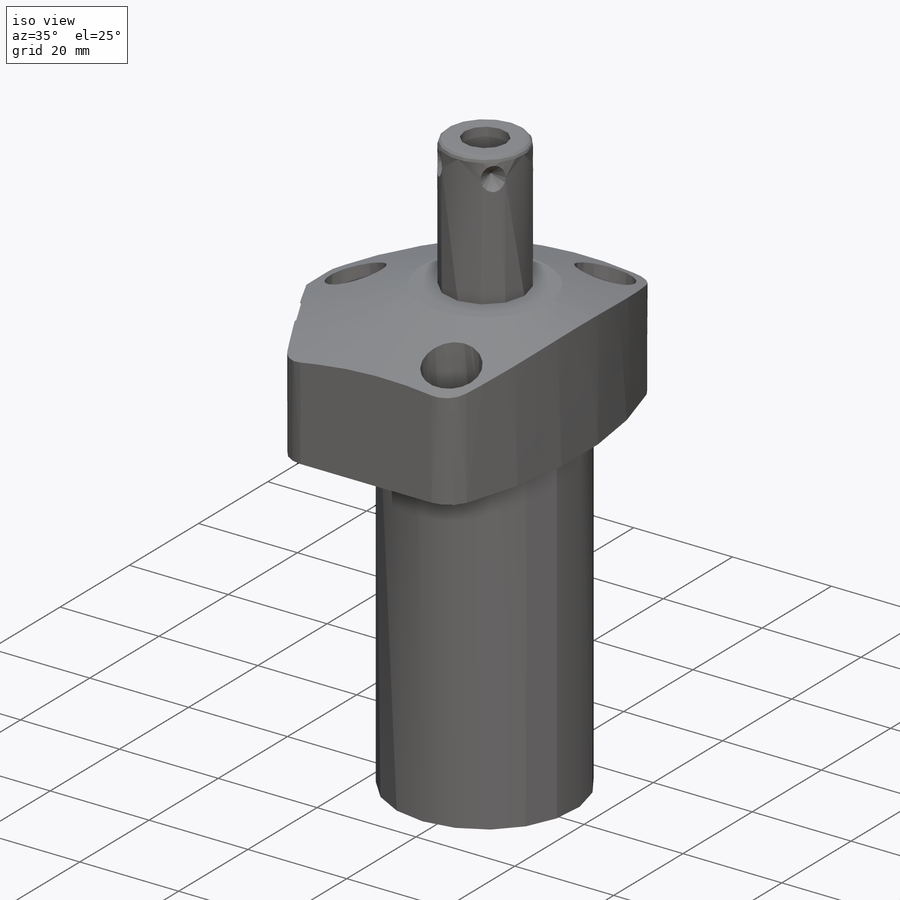
[diagram: iso view]
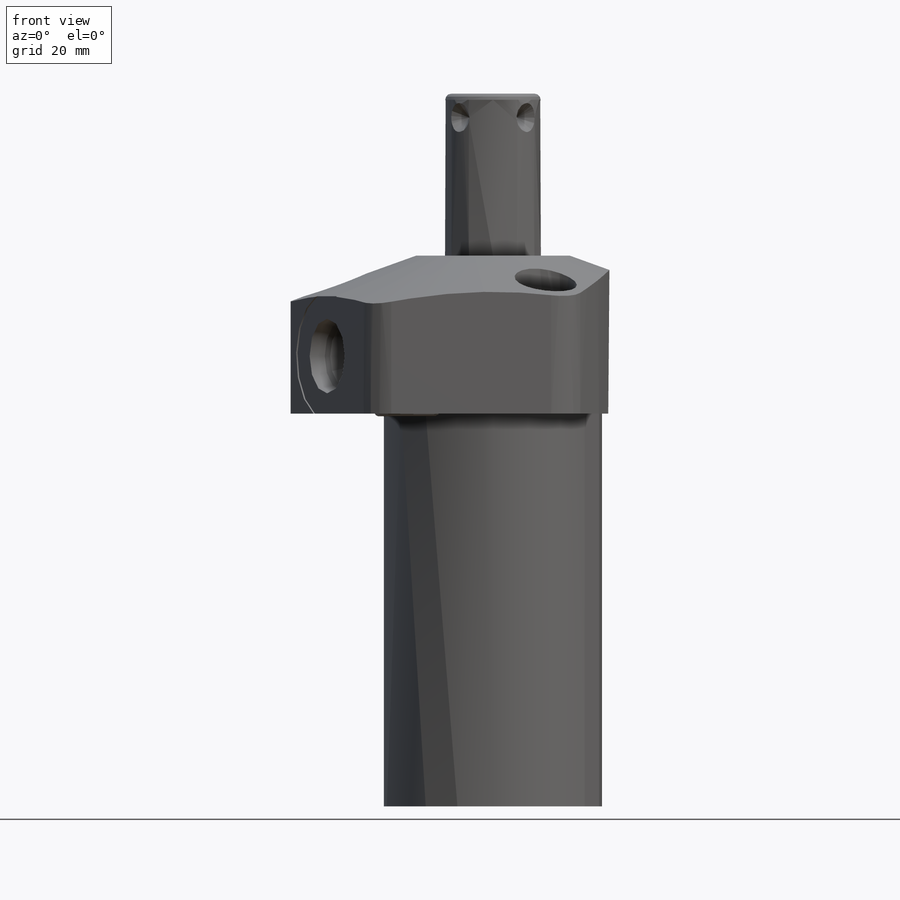
[diagram: front view]
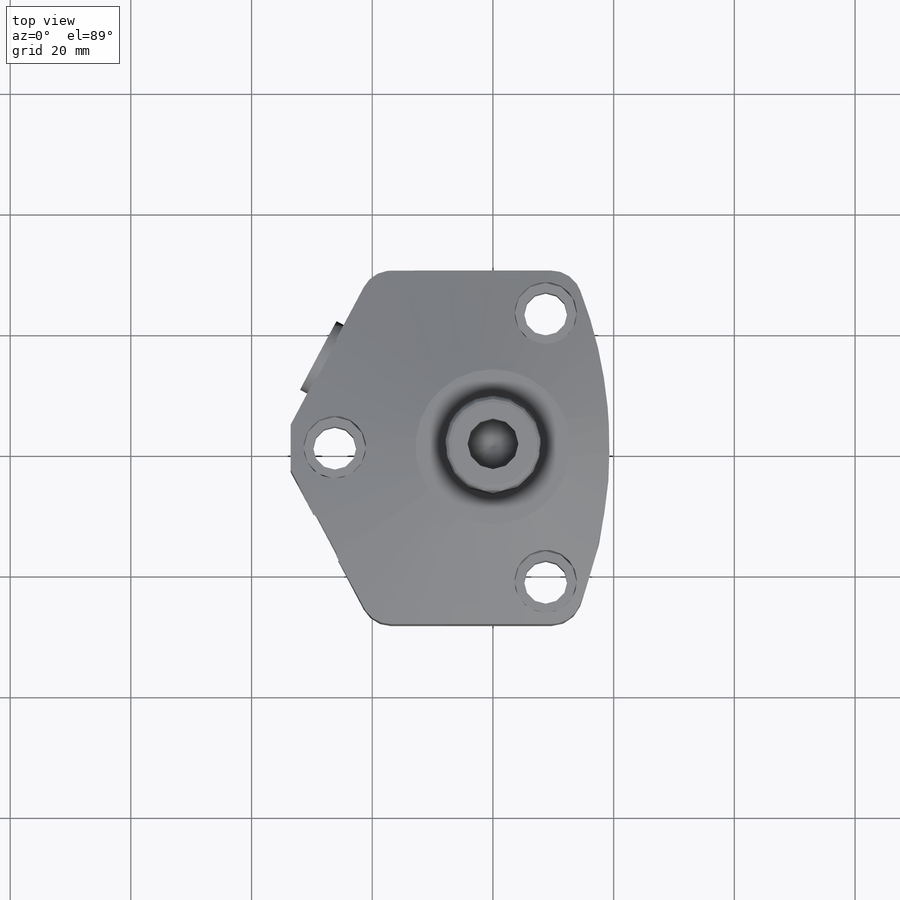
[diagram: top view]
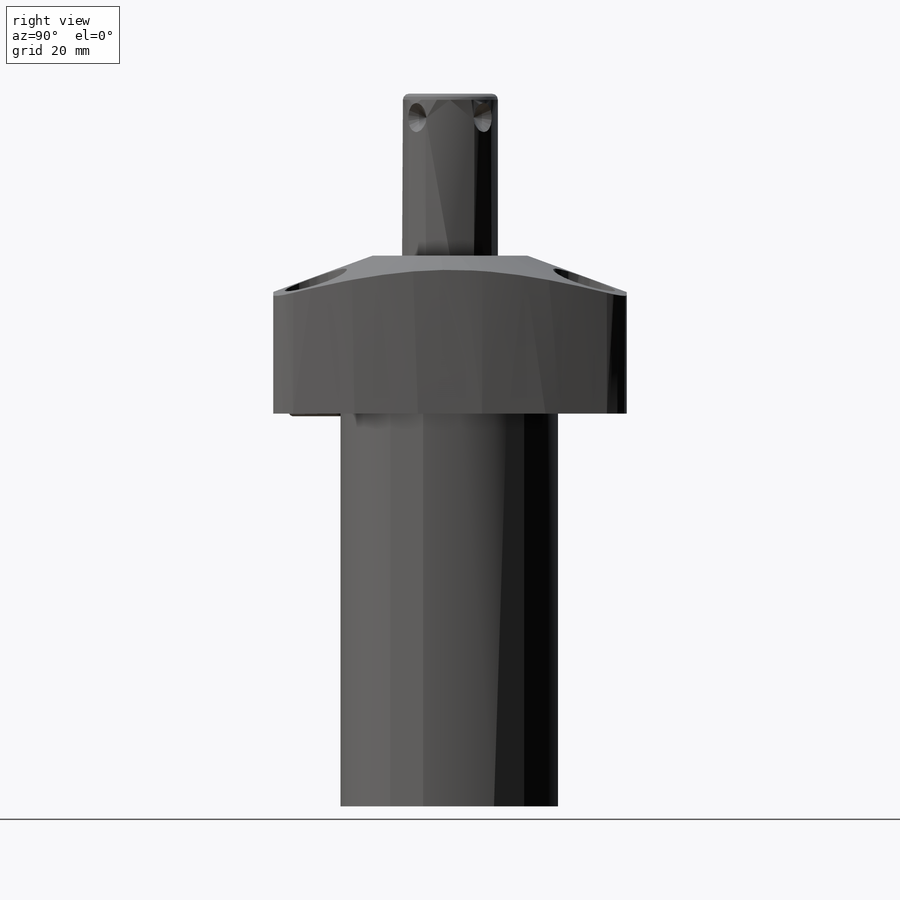
[diagram: right view]
SOLIDWORKS PART (.sldprt)
format: sldprt  version: not decoded by parser v0  size: 515,584 bytes
history: native  units: mm
features: sketch x19, plane x15, cut_revolve x7, cut_extrude x5, revolve x3, fillet x3, extrude x2, material x1, mirror x1, pattern_circular x1, hole x1 (+11 scaffold rows collapsed)
feature tree (69):
  scaffold x11  (default folders/planes/origin — collapsed)
  material  "Alloy Steel"
  plane  "Plane1"
  sketch  "Sketch1"  dims[D1=91.2622mm D2=69.85mm D3=26.1874mm D4=36.2712mm]
  revolve  "Revolve1"  Angle=360deg
  plane  "Plane2"
  sketch  "Sketch2"  dims[D1=58.5978mm D2=0.0mm]
  cut_extrude  "Cut-Extrude1"  [1 undecoded]
  plane  "Plane3"
  sketch  "Sketch3"  dims[c1.D1=~38.77825mm c2.D1=28.0deg c2.D2=~35.52759mm c3.D2=124.0deg c3.D3=31.369mm]
  cut_extrude  "Cut-Extrude2"  Depth=0mm
  plane  "Plane4"
  sketch  "S2D0002"  dims[D2=72.1868mm D1=33.528mm D3=52.8828mm]
  cut_extrude  "Cut-Extrude3"  Depth=35.31362mm
  fillet  "Fillet1"  Radius=5.1562mm
  fillet  "Fillet2"  Radius=5.1562mm
  fillet  "Fillet3"  Radius=5.1562mm
  plane  "Plane5"
  sketch  "Sketch5"  dims[c1.D1=25.654mm c1.D2=~34.151331mm c2.D2=20.0deg c2.D3=44.45mm]
  cut_revolve  "Cut-Revolve1"  Angle=360deg
  plane  "Plane6"
  sketch  "Sketch6"  dims[D1=15.748mm]
  cut_revolve  "Cut-Revolve2"  Angle=360deg
  plane  "Plane7"
  sketch  "Sketch7"  dims[D1=15.748mm]
  cut_revolve  "Cut-Revolve3"  Angle=360deg
  plane  "Plane8"
  sketch  "Sketch8"  dims[D1=12.573mm]
  cut_revolve  "Cut-Revolve4"  Angle=360deg
  plane  "Plane9"
  sketch  "Sketch9"  dims[D1=12.573mm]
  cut_revolve  "Cut-Revolve5"  Angle=360deg
  sketch  "Sketch17"  dims[D1=20.955mm]
  cut_extrude  "Cut-Extrude4"  Depth=0.254mm
  sketch  "Sketch18"  dims[D1=11.1252mm]
  cut_extrude  "Cut-Extrude5"  Depth=2.667mm
  mirror  "Mirror1"
  plane  "Plane10"
  sketch  "Sketch10"  dims[D1=1.016mm D2=53.0352mm D3=15.875mm]
  revolve  "Revolve2"  Angle=360deg
  plane  "Plane11"
  sketch  "S2D0001"  dims[c1.D1=8.4328mm c1.D2=15.24mm c1.D3=4.2164mm c2.D3=59.0deg]
  cut_revolve  "Cut-Revolve6"  Angle=360deg
  sketch  "Sketch12"  dims[D1=12.8778mm]
  extrude  "Extrude1"  Depth=1.651mm
  sketch  "Sketch13"  dims[D1=9.6012mm]
  plane  "Plane12"
  extrude  "Extrude2"  Depth=0mm
  plane  "Plane13"
  sketch  "Sketch14"  dims[D1=2.54mm D2=7.9502mm]
  revolve  "Revolve3"  Angle=360deg
  plane  "Plane14"
  plane  "Plane15"
  sketch  "Sketch15"  dims[c1.D1=3.9624mm c1.D2=4.826mm c1.D3=~3.412497mm c2.D3=45.0deg]
  cut_revolve  "Cut-Revolve7"  Angle=360deg
  pattern_circular  "CirPattern1"  Count=4 Angle=360deg
  hole  "Hole1"  Diameter=7.1374mm Depth=26.1874mm
  sketch  "Sketch20"  dims[D1=26.2128mm D2=22.225mm D3=8.7376mm]
  sketch  "Sketch19"  dims[Diameter=7.1374mm Depth=26.1874mm C-Bore Diameter=10.3124mm C-Bore Depth=13.4874mm]
decode coverage: 40 of 42 modeling features carry decoded parameters
note: ~ marks probable driven/reference dimensions
note: 1 parameter value undecoded
note: suppression state not decoded; provenance and decode notes live in map.json
